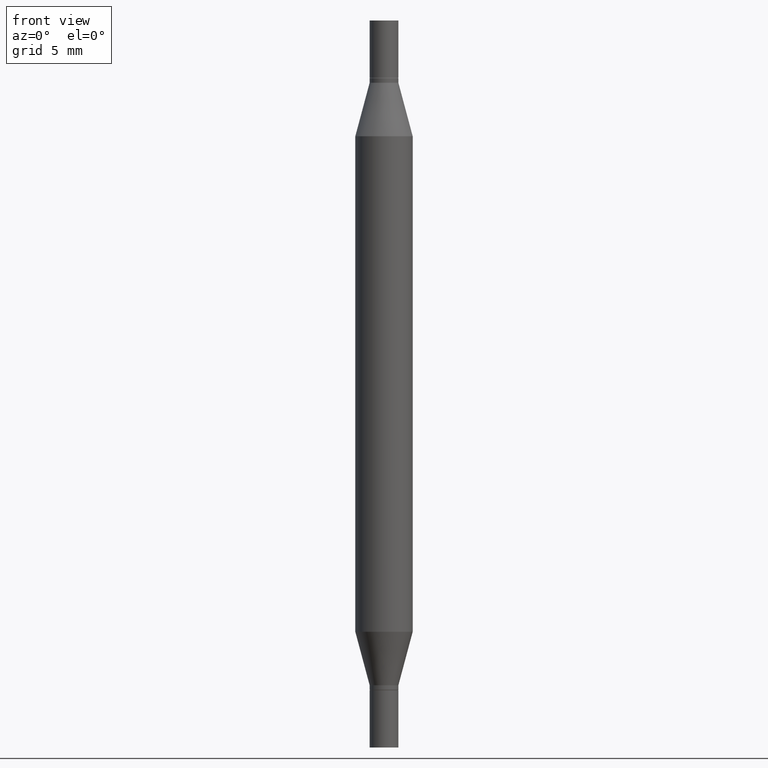
[diagram: clean part render]
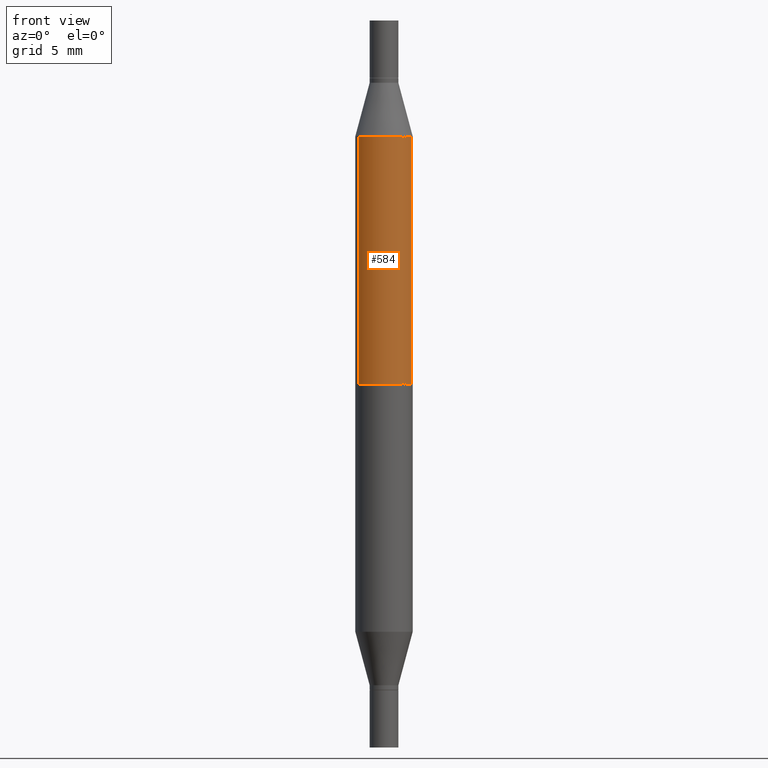
[diagram: same view with one face highlighted and labeled with its STEP entity id]
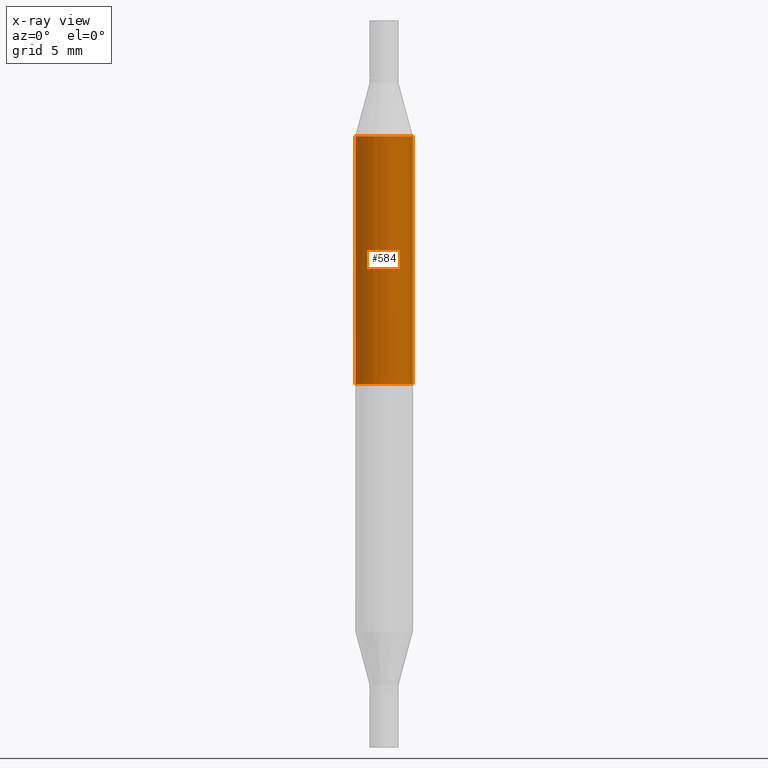
[diagram: x-ray of the same camera — body ghosted, the highlighted face saturated]
A machine part, front view. The second image highlights one B-rep face of the part: STEP entity #584.
The next image is the same camera in x-ray: the body ghosted, the highlighted face saturated — about 0% of this face is hidden behind the body in this view.
In plain terms, the highlighted cylindrical surface (edge-blend (fillet) strip) has radius 1.4999 mm, axis along (-0, -0, -1).
Its self-contained STEP definition (entity closure, byte-faithful):
#29 = FACE_OUTER_BOUND ( 'NONE', #503, .T. ) ;
#148 = AXIS2_PLACEMENT_3D ( 'NONE', #951, #273, #869 ) ;
#165 = DIRECTION ( 'NONE',  ( -2.445468806185136597E-29, -3.491805094961124077E-15, -1.000000000000000000 ) ) ;
#233 = DIRECTION ( 'NONE',  ( -0.000000000000000000, -3.491643216902134830E-15, -1.000000000000000000 ) ) ;
#236 = EDGE_CURVE ( 'NONE', #739, #792, #968, .T. ) ;
#254 = CARTESIAN_POINT ( 'NONE',  ( 0.000000000000000000, -5.223847416807283040E-15, -1.496099999999999985 ) ) ;
#267 = CIRCLE ( 'NONE', #422, 0.05905000000000000526 ) ;
#273 = DIRECTION ( 'NONE',  ( 2.445468806185136597E-29, 3.491805094961124077E-15, 1.000000000000000000 ) ) ;
#335 = CYLINDRICAL_SURFACE ( 'NONE', #623, 0.05905000000000000526 ) ;
#376 = EDGE_CURVE ( 'NONE', #678, #739, #778, .T. ) ;
#379 = CARTESIAN_POINT ( 'NONE',  ( 0.05905000000000000526, -5.636191362924657961E-15, -1.496099999999999985 ) ) ;
#414 = CARTESIAN_POINT ( 'NONE',  ( 0.05904999999999999832, -1.243484836231766624E-15, -0.2380954988232820146 ) ) ;
#422 = AXIS2_PLACEMENT_3D ( 'NONE', #525, #233, #598 ) ;
#454 = CARTESIAN_POINT ( 'NONE',  ( -0.05905000000000000526, -1.316359346049593906E-15, -0.7480499999999999927 ) ) ;
#461 = EDGE_CURVE ( 'NONE', #678, #772, #708, .T. ) ;
#482 = VECTOR ( 'NONE', #532, 39.37007874015748143 ) ;
#503 = EDGE_LOOP ( 'NONE', ( #782, #818, #722, #673 ) ) ;
#525 = CARTESIAN_POINT ( 'NONE',  ( 1.829332940466791194E-29, -2.611802615521614830E-15, -0.7480499999999999927 ) ) ;
#532 = DIRECTION ( 'NONE',  ( -2.445468806185136877E-29, -3.491805094961123683E-15, -1.000000000000000000 ) ) ;
#565 = VECTOR ( 'NONE', #901, 39.37007874015748143 ) ;
#584 = ADVANCED_FACE ( 'NONE', ( #29 ), #335, .T. ) ;
#598 = DIRECTION ( 'NONE',  ( 0.000000000000000000, 1.000000000000000000, -4.626330217890369336E-15 ) ) ;
#611 = DIRECTION ( 'NONE',  ( 1.000000000000000000, -6.982962677686272233E-15, 0.000000000000000000 ) ) ;
#623 = AXIS2_PLACEMENT_3D ( 'NONE', #254, #165, #611 ) ;
#662 = CARTESIAN_POINT ( 'NONE',  ( -0.05904999999999999832, -4.260284833459836245E-16, -0.2380954988232820146 ) ) ;
#673 = ORIENTED_EDGE ( 'NONE', *, *, #236, .F. ) ;
#678 = VERTEX_POINT ( 'NONE', #662 ) ;
#708 = LINE ( 'NONE', #848, #482 ) ;
#722 = ORIENTED_EDGE ( 'NONE', *, *, #826, .F. ) ;
#739 = VERTEX_POINT ( 'NONE', #414 ) ;
#772 = VERTEX_POINT ( 'NONE', #454 ) ;
#778 = CIRCLE ( 'NONE', #148, 0.05904999999999999832 ) ;
#782 = ORIENTED_EDGE ( 'NONE', *, *, #376, .F. ) ;
#792 = VERTEX_POINT ( 'NONE', #974 ) ;
#818 = ORIENTED_EDGE ( 'NONE', *, *, #461, .T. ) ;
#826 = EDGE_CURVE ( 'NONE', #792, #772, #267, .T. ) ;
#848 = CARTESIAN_POINT ( 'NONE',  ( -0.05905000000000000526, -4.818735010038875060E-15, -1.496099999999999985 ) ) ;
#869 = DIRECTION ( 'NONE',  ( 1.000000000000000000, -6.982962677686265133E-15, 0.000000000000000000 ) ) ;
#901 = DIRECTION ( 'NONE',  ( -2.445468806185136877E-29, -3.491805094961123683E-15, -1.000000000000000000 ) ) ;
#951 = CARTESIAN_POINT ( 'NONE',  ( 3.076410765668156654E-29, -8.311408901143919011E-16, -0.2380954988232820146 ) ) ;
#968 = LINE ( 'NONE', #379, #565 ) ;
#974 = CARTESIAN_POINT ( 'NONE',  ( 0.05905000000000000526, -2.133815698935376609E-15, -0.7480499999999999927 ) ) ;